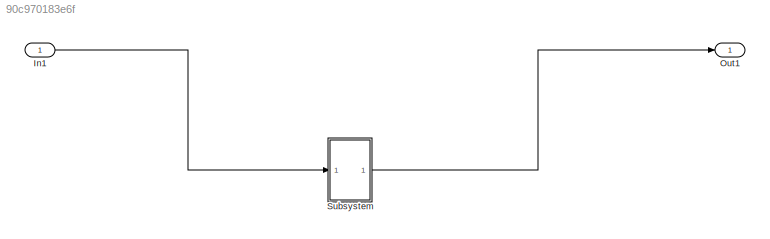
MODEL slx_90c970183e6f
KIND model
CONFIG AbsTol = auto
CONFIG EnableMultiTasking = off
CONFIG FixedStep = auto
CONFIG MaxStep = auto
CONFIG MinStep = auto
CONFIG RelTol = 1e-3
CONFIG SampleTimeConstraint = Unconstrained
CONFIG SolverName = VariableStepAuto
CONFIG StartTime = 0.0
CONFIG StopTime = 10.0
WORKSPACE source: mxarray member
WORKSPACE a: Simulink.Parameter (value not decoded)
WORKSPACE b: Simulink.Parameter (value not decoded)
WORKSPACE c: Simulink.Parameter (value not decoded)
WORKSPACE d: Simulink.Parameter (value not decoded)
WORKSPACE e: Simulink.Parameter (value not decoded)
WORKSPACE f: Simulink.Parameter (value not decoded)
BLOCK [Inport] In1
  OutDataTypeStr = double
  PortDimensions = 1
  SampleTime = 0
  SamplingMode = Sample based
  SignalType = real
BLOCK [Outport] Out1
  OutDataTypeStr = double
  PortDimensions = 1
  SampleTime = 0
  SamplingMode = Sample based
  SignalType = real
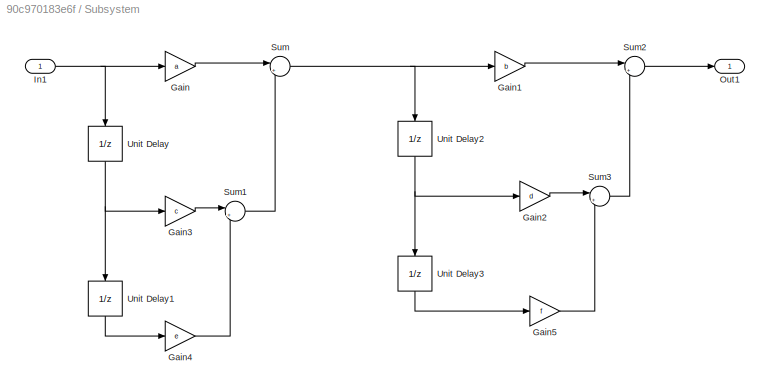
BLOCK [SubSystem] Subsystem
  Ports = [1, 1]
  RequestExecContextInheritance = off
BLOCK [Gain] Subsystem/Gain
  Gain = a
BLOCK [Gain] Subsystem/Gain1
  Gain = b
BLOCK [Gain] Subsystem/Gain2
  Gain = d
BLOCK [Gain] Subsystem/Gain3
  Gain = c
BLOCK [Gain] Subsystem/Gain4
  Gain = e
BLOCK [Gain] Subsystem/Gain5
  Gain = f
BLOCK [Inport] Subsystem/In1
BLOCK [Outport] Subsystem/Out1
BLOCK [Sum] Subsystem/Sum
  Inputs = |++
  Ports = [2, 1]
BLOCK [Sum] Subsystem/Sum1
  Inputs = |++
  Ports = [2, 1]
BLOCK [Sum] Subsystem/Sum2
  Inputs = |++
  Ports = [2, 1]
BLOCK [Sum] Subsystem/Sum3
  Inputs = |++
  Ports = [2, 1]
BLOCK [UnitDelay] Subsystem/Unit Delay
  HasFrameUpgradeWarning = on
  NameLocation = left
  SampleTime = -1
BLOCK [UnitDelay] Subsystem/Unit Delay1
  HasFrameUpgradeWarning = on
  NameLocation = right
  SampleTime = -1
BLOCK [UnitDelay] Subsystem/Unit Delay2
  HasFrameUpgradeWarning = on
  NameLocation = left
  SampleTime = -1
BLOCK [UnitDelay] Subsystem/Unit Delay3
  HasFrameUpgradeWarning = on
  NameLocation = left
  SampleTime = -1
LINE In1:1 -> Subsystem:1
LINE Subsystem/Gain1:1 -> Subsystem/Sum2:1
LINE Subsystem/Gain2:1 -> Subsystem/Sum3:1
LINE Subsystem/Gain3:1 -> Subsystem/Sum1:1
LINE Subsystem/Gain4:1 -> Subsystem/Sum1:2
LINE Subsystem/Gain5:1 -> Subsystem/Sum3:2
LINE Subsystem/Gain:1 -> Subsystem/Sum:1
NET Subsystem/In1:1 -> Subsystem/Gain:1, Subsystem/Unit Delay:1
LINE Subsystem/Sum1:1 -> Subsystem/Sum:2
LINE Subsystem/Sum2:1 -> Subsystem/Out1:1
LINE Subsystem/Sum3:1 -> Subsystem/Sum2:2
NET Subsystem/Sum:1 -> Subsystem/Gain1:1, Subsystem/Unit Delay2:1
LINE Subsystem/Unit Delay1:1 -> Subsystem/Gain4:1
NET Subsystem/Unit Delay2:1 -> Subsystem/Gain2:1, Subsystem/Unit Delay3:1
LINE Subsystem/Unit Delay3:1 -> Subsystem/Gain5:1
NET Subsystem/Unit Delay:1 -> Subsystem/Gain3:1, Subsystem/Unit Delay1:1
LINE Subsystem:1 -> Out1:1
note: NET lines group one-source signal fan-out (src -> all destinations, sorted); 1:1 wires keep LINE
